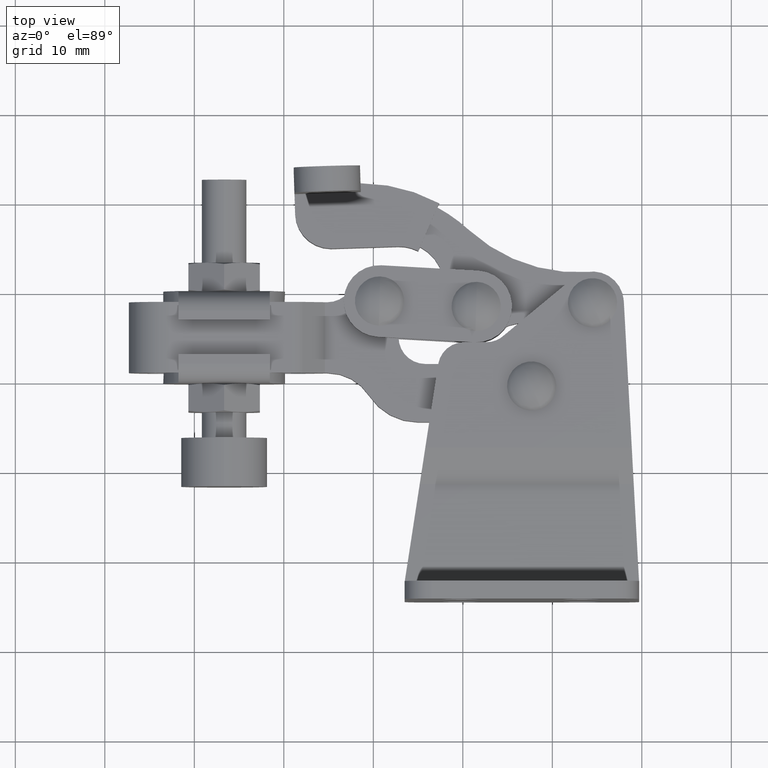
[diagram: clean part render]
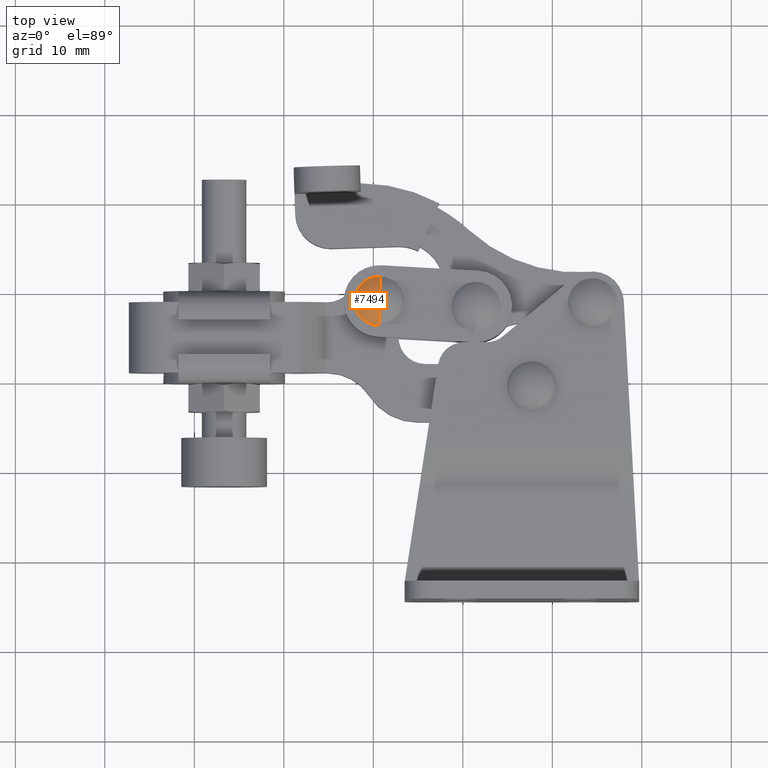
[diagram: same view with one face highlighted and labeled with its STEP entity id]
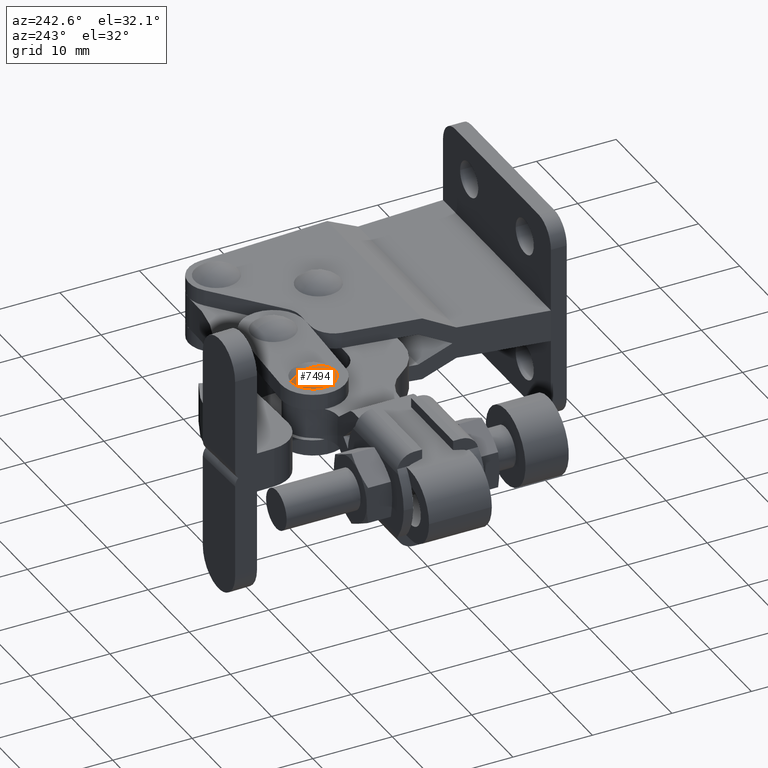
[diagram: same view with one face highlighted and labeled with its STEP entity id]
A machine part, top view. The second image highlights one B-rep face of the part: STEP entity #7494.
A second angle (auxiliary view) of the same face is appended — the face is thin or edge-on in the first view.
In plain terms, the highlighted spherical surface has radius 3.751 mm.
Its self-contained STEP definition (entity closure, byte-faithful):
#116 = DIRECTION ( 'NONE',  ( -0.9995844280367149900, 0.02882657153588401600, 7.036022554894999200E-018 ) ) ;
#801 = CARTESIAN_POINT ( 'NONE',  ( 0.6935984671260775300, 58.90000000000239300, 12.59875534094608100 ) ) ;
#946 = VERTEX_POINT ( 'NONE', #8536 ) ;
#1120 = CARTESIAN_POINT ( 'NONE',  ( 0.6935984671260775300, 58.90000000000239300, 12.59875534094608100 ) ) ;
#1828 = DIRECTION ( 'NONE',  ( -0.02882657153588403000, -0.9995844280367149900, 0.0000000000000000000 ) ) ;
#2211 = AXIS2_PLACEMENT_3D ( 'NONE', #801, #4586, #5485 ) ;
#2545 = ORIENTED_EDGE ( 'NONE', *, *, #3774, .T. ) ;
#2651 = SPHERICAL_SURFACE ( 'NONE', #8791, 3.751041666666667500 ) ;
#2827 = ORIENTED_EDGE ( 'NONE', *, *, #6543, .T. ) ;
#3363 = FACE_OUTER_BOUND ( 'NONE', #7027, .T. ) ;
#3522 = EDGE_CURVE ( 'NONE', #4914, #946, #4965, .T. ) ;
#3593 = CARTESIAN_POINT ( 'NONE',  ( 0.6935984671260775300, 58.90000000000239300, 15.14979700761274900 ) ) ;
#3774 = EDGE_CURVE ( 'NONE', #4874, #946, #8915, .T. ) ;
#3833 = CARTESIAN_POINT ( 'NONE',  ( 0.6935984671260775300, 58.90000000000239300, 12.59875534094608100 ) ) ;
#4231 = DIRECTION ( 'NONE',  ( -0.9995844280367149900, 0.02882657153588386000, 7.036022554894999200E-018 ) ) ;
#4373 = DIRECTION ( 'NONE',  ( 0.9995844280367148800, -0.02882657153588374900, 0.0000000000000000000 ) ) ;
#4580 = AXIS2_PLACEMENT_3D ( 'NONE', #3833, #116, #1828 ) ;
#4586 = DIRECTION ( 'NONE',  ( 0.9995844280367149900, -0.02882657153588389500, -7.036022554894999200E-018 ) ) ;
#4874 = VERTEX_POINT ( 'NONE', #5920 ) ;
#4914 = VERTEX_POINT ( 'NONE', #9796 ) ;
#4965 = CIRCLE ( 'NONE', #2211, 3.751041666666673300 ) ;
#5485 = DIRECTION ( 'NONE',  ( 0.02882657153588386000, 0.9995844280367149900, 0.0000000000000000000 ) ) ;
#5920 = CARTESIAN_POINT ( 'NONE',  ( 0.6143253954023965000, 56.15114282290142700, 15.14979700761274900 ) ) ;
#6156 = AXIS2_PLACEMENT_3D ( 'NONE', #3593, #8956, #4373 ) ;
#6543 = EDGE_CURVE ( 'NONE', #4914, #4874, #7850, .T. ) ;
#7027 = EDGE_LOOP ( 'NONE', ( #2827, #2545, #7204 ) ) ;
#7204 = ORIENTED_EDGE ( 'NONE', *, *, #3522, .F. ) ;
#7494 = ADVANCED_FACE ( 'NONE', ( #3363 ), #2651, .T. ) ;
#7850 = CIRCLE ( 'NONE', #6156, 2.750000000000000000 ) ;
#8536 = CARTESIAN_POINT ( 'NONE',  ( 0.6935984671260775300, 58.90000000000239300, 16.34979700761274700 ) ) ;
#8791 = AXIS2_PLACEMENT_3D ( 'NONE', #1120, #4231, #9593 ) ;
#8915 = CIRCLE ( 'NONE', #4580, 3.751041666666666200 ) ;
#8956 = DIRECTION ( 'NONE',  ( 6.938893903907226800E-018, -3.469446951953613400E-018, 1.000000000000000000 ) ) ;
#9593 = DIRECTION ( 'NONE',  ( 0.02882657153588386000, 0.9995844280367149900, 0.0000000000000000000 ) ) ;
#9796 = CARTESIAN_POINT ( 'NONE',  ( 0.7728715388497582300, 61.64885717710335900, 15.14979700761274900 ) ) ;